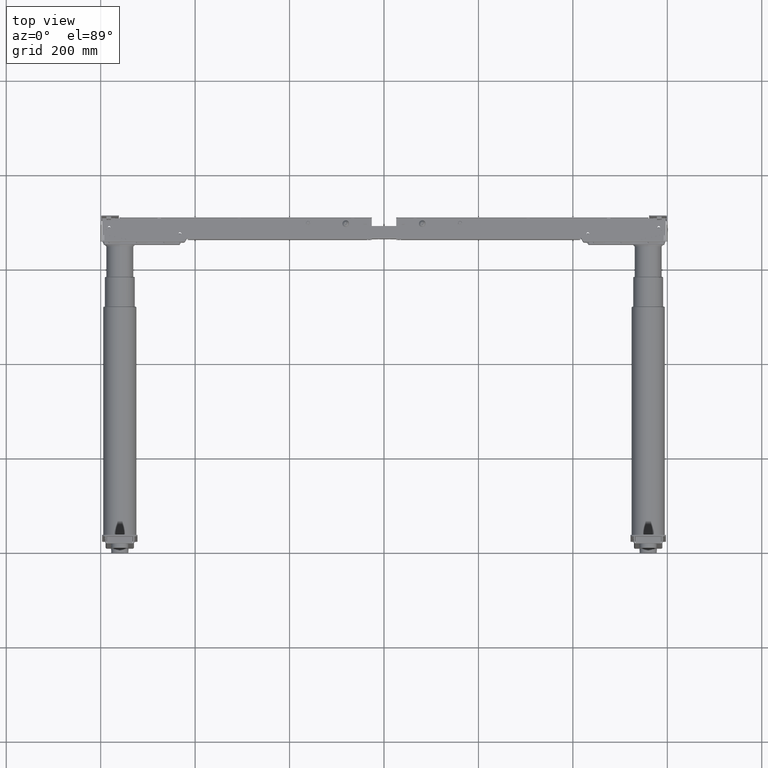
[diagram: clean part render]
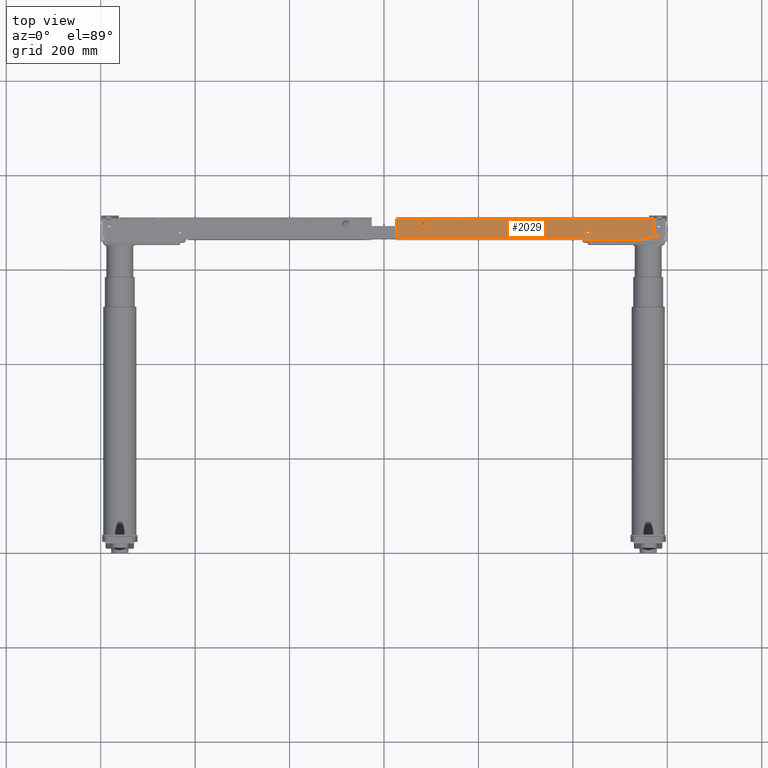
[diagram: same view with one face highlighted and labeled with its STEP entity id]
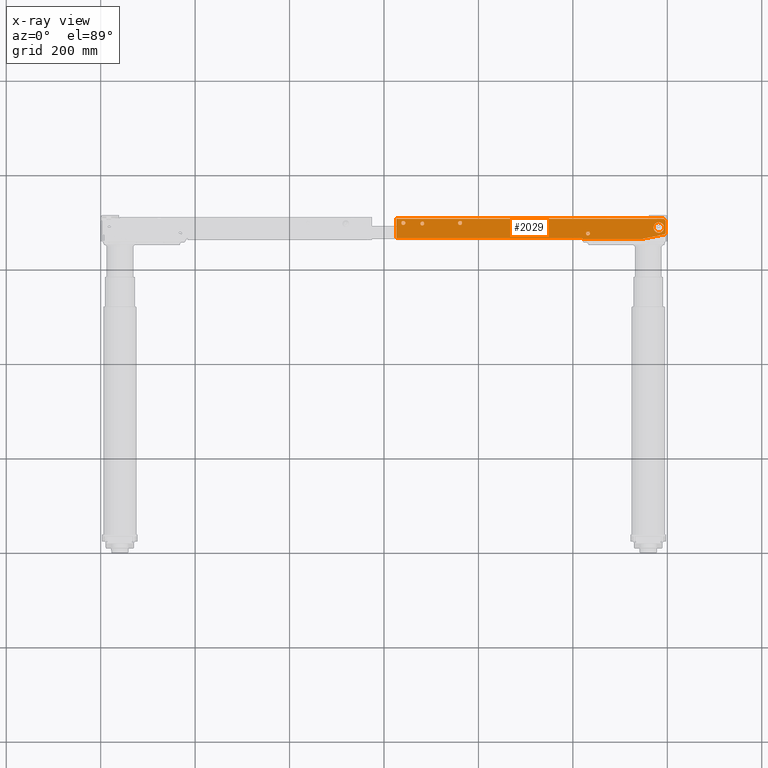
[diagram: x-ray of the same camera — body ghosted, the highlighted face saturated]
A machine part, top view. The second image highlights one B-rep face of the part: STEP entity #2029.
The next image is the same camera in x-ray: the body ghosted, the highlighted face saturated — about 0% of this face is hidden behind the body in this view.
In plain terms, the highlighted planar face has unit normal (0, 0, -1).
Its self-contained STEP definition (entity closure, byte-faithful):
#235 = LINE ( 'NONE', #83879, #34282 ) ;
#2029 = ADVANCED_FACE ( 'NONE', ( #104818, #95967, #53316, #69967, #94911, #44967 ), #94378, .F. ) ;
#2608 = ORIENTED_EDGE ( 'NONE', *, *, #37744, .F. ) ;
#3161 = VERTEX_POINT ( 'NONE', #18849 ) ;
#3286 = EDGE_CURVE ( 'NONE', #40039, #25336, #7541, .T. ) ;
#3337 = ORIENTED_EDGE ( 'NONE', *, *, #44582, .F. ) ;
#4040 = ORIENTED_EDGE ( 'NONE', *, *, #52958, .F. ) ;
#4456 = DIRECTION ( 'NONE',  ( -1.000000000000000000, 0.000000000000000000, 0.000000000000000000 ) ) ;
#5257 = DIRECTION ( 'NONE',  ( 0.9791338374667454270, 0.2032164568327207987, 0.000000000000000000 ) ) ;
#5892 = DIRECTION ( 'NONE',  ( 0.000000000000000000, -1.000000000000000000, 0.000000000000000000 ) ) ;
#6293 = DIRECTION ( 'NONE',  ( 0.000000000000000000, 0.000000000000000000, -1.000000000000000000 ) ) ;
#6464 = EDGE_LOOP ( 'NONE', ( #103527, #33527, #87466, #72435, #74947, #9717, #4040, #54064, #106850, #85042, #68302, #3337 ) ) ;
#6613 = AXIS2_PLACEMENT_3D ( 'NONE', #67322, #91716, #16889 ) ;
#6619 = ORIENTED_EDGE ( 'NONE', *, *, #32623, .F. ) ;
#7484 = DIRECTION ( 'NONE',  ( -0.000000000000000000, -0.000000000000000000, 1.000000000000000000 ) ) ;
#7541 = CIRCLE ( 'NONE', #69449, 11.00000000000001066 ) ;
#7873 = CARTESIAN_POINT ( 'NONE',  ( 559.9999999999998863, 701.4999999999989768, 46.99999999999997868 ) ) ;
#9352 = VERTEX_POINT ( 'NONE', #7873 ) ;
#9438 = EDGE_CURVE ( 'NONE', #82328, #79295, #83252, .T. ) ;
#9717 = ORIENTED_EDGE ( 'NONE', *, *, #79897, .T. ) ;
#9956 = DIRECTION ( 'NONE',  ( 0.000000000000000000, 0.000000000000000000, 1.000000000000000000 ) ) ;
#10350 = VERTEX_POINT ( 'NONE', #86521 ) ;
#10891 = AXIS2_PLACEMENT_3D ( 'NONE', #73721, #90348, #57619 ) ;
#11507 = VECTOR ( 'NONE', #92572, 1000.000000000000000 ) ;
#12087 = ORIENTED_EDGE ( 'NONE', *, *, #3286, .F. ) ;
#12832 = VECTOR ( 'NONE', #5892, 1000.000000000000000 ) ;
#12897 = DIRECTION ( 'NONE',  ( -1.000000000000000000, -0.000000000000000000, -0.000000000000000000 ) ) ;
#13103 = LINE ( 'NONE', #65186, #12832 ) ;
#13236 = LINE ( 'NONE', #21516, #46833 ) ;
#13345 = VERTEX_POINT ( 'NONE', #85331 ) ;
#13874 = ORIENTED_EDGE ( 'NONE', *, *, #33287, .F. ) ;
#14090 = EDGE_CURVE ( 'NONE', #18579, #63473, #85887, .T. ) ;
#14257 = CARTESIAN_POINT ( 'NONE',  ( 80.99999999999974420, 691.3999999999990678, 46.99999999999997868 ) ) ;
#14552 = CIRCLE ( 'NONE', #55213, 11.00000000000001066 ) ;
#14621 = CARTESIAN_POINT ( 'NONE',  ( 431.9575060191278340, 670.4999999999989768, 46.99999999999997868 ) ) ;
#14670 = CARTESIAN_POINT ( 'NONE',  ( 591.4999999999996589, 673.0688183406497274, 46.99999999999997868 ) ) ;
#15620 = EDGE_LOOP ( 'NONE', ( #6619, #2608 ) ) ;
#16889 = DIRECTION ( 'NONE',  ( -1.000000000000000000, 0.000000000000000000, 0.000000000000000000 ) ) ;
#18579 = VERTEX_POINT ( 'NONE', #107311 ) ;
#18849 = CARTESIAN_POINT ( 'NONE',  ( 592.5160822841633035, 668.1731491533161034, 46.99999999999997868 ) ) ;
#19266 = CIRCLE ( 'NONE', #45804, 4.099999999999992539 ) ;
#19388 = CARTESIAN_POINT ( 'NONE',  ( 40.99999999999975842, 692.5999999999989996, 46.99999999999997868 ) ) ;
#19540 = CIRCLE ( 'NONE', #74388, 5.000000000000004441 ) ;
#20969 = CARTESIAN_POINT ( 'NONE',  ( 418.9999999999997726, 660.9999999999989768, 46.99999999999997868 ) ) ;
#21464 = VERTEX_POINT ( 'NONE', #33273 ) ;
#21516 = CARTESIAN_POINT ( 'NONE',  ( 537.9999999999997726, 660.9999999999989768, 46.99999999999997868 ) ) ;
#22578 = DIRECTION ( 'NONE',  ( 1.000000000000000000, 0.000000000000000000, 0.000000000000000000 ) ) ;
#23047 = AXIS2_PLACEMENT_3D ( 'NONE', #78168, #80339, #36562 ) ;
#23128 = VERTEX_POINT ( 'NONE', #36417 ) ;
#24343 = VECTOR ( 'NONE', #5257, 999.9999999999998863 ) ;
#24765 = VERTEX_POINT ( 'NONE', #69351 ) ;
#25129 = VERTEX_POINT ( 'NONE', #99957 ) ;
#25336 = VERTEX_POINT ( 'NONE', #89853 ) ;
#26313 = CARTESIAN_POINT ( 'NONE',  ( 570.9999999999998863, 682.9999999999990905, 46.99999999999997868 ) ) ;
#26769 = DIRECTION ( 'NONE',  ( -1.000000000000000000, -0.000000000000000000, -0.000000000000000000 ) ) ;
#27506 = VERTEX_POINT ( 'NONE', #20969 ) ;
#30110 = DIRECTION ( 'NONE',  ( 0.000000000000000000, 0.000000000000000000, 1.000000000000000000 ) ) ;
#31164 = CIRCLE ( 'NONE', #61300, 4.299999999999998046 ) ;
#31264 = DIRECTION ( 'NONE',  ( -1.000000000000000000, 0.000000000000000000, 0.000000000000000000 ) ) ;
#31617 = CIRCLE ( 'NONE', #67015, 4.299999999999998046 ) ;
#32484 = EDGE_CURVE ( 'NONE', #25129, #10350, #40622, .T. ) ;
#32623 = EDGE_CURVE ( 'NONE', #23128, #105850, #31617, .T. ) ;
#33273 = CARTESIAN_POINT ( 'NONE',  ( 165.2999999999997556, 692.5999999999989996, 46.99999999999997868 ) ) ;
#33287 = EDGE_CURVE ( 'NONE', #59947, #49258, #19266, .T. ) ;
#33527 = ORIENTED_EDGE ( 'NONE', *, *, #66342, .T. ) ;
#34282 = VECTOR ( 'NONE', #26769, 1000.000000000000000 ) ;
#36417 = CARTESIAN_POINT ( 'NONE',  ( 45.29999999999975557, 692.5999999999989996, 46.99999999999997868 ) ) ;
#36562 = DIRECTION ( 'NONE',  ( -1.000000000000000000, 0.000000000000000000, 0.000000000000000000 ) ) ;
#37744 = EDGE_CURVE ( 'NONE', #105850, #23128, #44998, .T. ) ;
#38173 = CARTESIAN_POINT ( 'NONE',  ( 590.4999999999997726, 701.4999999999989768, 46.99999999999997868 ) ) ;
#39229 = EDGE_CURVE ( 'NONE', #49258, #59947, #100222, .T. ) ;
#40039 = VERTEX_POINT ( 'NONE', #26313 ) ;
#40127 = CIRCLE ( 'NONE', #105629, 4.250000000000031974 ) ;
#40306 = EDGE_CURVE ( 'NONE', #79295, #82328, #40127, .T. ) ;
#40622 = LINE ( 'NONE', #74468, #82817 ) ;
#41797 = ORIENTED_EDGE ( 'NONE', *, *, #39229, .F. ) ;
#41987 = ORIENTED_EDGE ( 'NONE', *, *, #73935, .F. ) ;
#43927 = DIRECTION ( 'NONE',  ( -1.000000000000000000, 0.000000000000000000, -0.000000000000000000 ) ) ;
#44582 = EDGE_CURVE ( 'NONE', #13345, #10350, #235, .T. ) ;
#44962 = AXIS2_PLACEMENT_3D ( 'NONE', #14670, #80594, #31264 ) ;
#44967 = FACE_OUTER_BOUND ( 'NONE', #6464, .T. ) ;
#44998 = CIRCLE ( 'NONE', #106971, 4.299999999999998046 ) ;
#45384 = DIRECTION ( 'NONE',  ( 0.000000000000000000, 0.000000000000000000, 1.000000000000000000 ) ) ;
#45804 = AXIS2_PLACEMENT_3D ( 'NONE', #14257, #57989, #91246 ) ;
#46533 = DIRECTION ( 'NONE',  ( -0.000000000000000000, -0.000000000000000000, 1.000000000000000000 ) ) ;
#46833 = VECTOR ( 'NONE', #55854, 1000.000000000000000 ) ;
#46914 = DIRECTION ( 'NONE',  ( -0.000000000000000000, -0.000000000000000000, 1.000000000000000000 ) ) ;
#47058 = AXIS2_PLACEMENT_3D ( 'NONE', #78179, #46533, #4456 ) ;
#47294 = DIRECTION ( 'NONE',  ( 1.000000000000000000, 0.000000000000000000, 0.000000000000000000 ) ) ;
#47498 = DIRECTION ( 'NONE',  ( 0.000000000000000000, 0.000000000000000000, 1.000000000000000000 ) ) ;
#47805 = EDGE_CURVE ( 'NONE', #27506, #13345, #13236, .T. ) ;
#49258 = VERTEX_POINT ( 'NONE', #105464 ) ;
#50412 = DIRECTION ( 'NONE',  ( 1.000000000000000000, 0.000000000000000000, 0.000000000000000000 ) ) ;
#52958 = EDGE_CURVE ( 'NONE', #68593, #85549, #13103, .T. ) ;
#53031 = CARTESIAN_POINT ( 'NONE',  ( 36.69999999999976126, 692.5999999999989996, 46.99999999999997868 ) ) ;
#53316 = FACE_BOUND ( 'NONE', #108197, .T. ) ;
#54064 = ORIENTED_EDGE ( 'NONE', *, *, #62026, .T. ) ;
#55213 = AXIS2_PLACEMENT_3D ( 'NONE', #82853, #7484, #108298 ) ;
#55854 = DIRECTION ( 'NONE',  ( -1.000000000000000000, -0.000000000000000000, -0.000000000000000000 ) ) ;
#57619 = DIRECTION ( 'NONE',  ( 1.000000000000000000, 0.000000000000000000, 0.000000000000000000 ) ) ;
#57989 = DIRECTION ( 'NONE',  ( 0.000000000000000000, 0.000000000000000000, 1.000000000000000000 ) ) ;
#58307 = CARTESIAN_POINT ( 'NONE',  ( 427.7075060191278340, 670.4999999999989768, 46.99999999999997868 ) ) ;
#59947 = VERTEX_POINT ( 'NONE', #81019 ) ;
#60021 = ORIENTED_EDGE ( 'NONE', *, *, #9438, .T. ) ;
#60882 = CARTESIAN_POINT ( 'NONE',  ( 160.9999999999997442, 692.5999999999989996, 46.99999999999997868 ) ) ;
#61300 = AXIS2_PLACEMENT_3D ( 'NONE', #60882, #9956, #50412 ) ;
#61629 = DIRECTION ( 'NONE',  ( -1.000000000000000000, -0.000000000000000000, -0.000000000000000000 ) ) ;
#62026 = EDGE_CURVE ( 'NONE', #68593, #80701, #89726, .T. ) ;
#63473 = VERTEX_POINT ( 'NONE', #68019 ) ;
#64675 = CARTESIAN_POINT ( 'NONE',  ( 40.99999999999975842, 692.5999999999989996, 46.99999999999997868 ) ) ;
#65186 = CARTESIAN_POINT ( 'NONE',  ( 596.4999999999997726, 701.4999999999989768, 46.99999999999997868 ) ) ;
#66342 = EDGE_CURVE ( 'NONE', #27506, #63473, #109265, .T. ) ;
#66774 = EDGE_CURVE ( 'NONE', #21464, #24765, #31164, .T. ) ;
#67015 = AXIS2_PLACEMENT_3D ( 'NONE', #19388, #45384, #67801 ) ;
#67322 = CARTESIAN_POINT ( 'NONE',  ( 590.4999999999997726, 695.4999999999989768, 46.99999999999997868 ) ) ;
#67801 = DIRECTION ( 'NONE',  ( 1.000000000000000000, 0.000000000000000000, 0.000000000000000000 ) ) ;
#68019 = CARTESIAN_POINT ( 'NONE',  ( 421.9999999999997726, 657.9999999999989768, 46.99999999999997868 ) ) ;
#68063 = CIRCLE ( 'NONE', #44962, 5.000000000000004441 ) ;
#68302 = ORIENTED_EDGE ( 'NONE', *, *, #32484, .T. ) ;
#68593 = VERTEX_POINT ( 'NONE', #79157 ) ;
#69351 = CARTESIAN_POINT ( 'NONE',  ( 156.6999999999997613, 692.5999999999989996, 46.99999999999997868 ) ) ;
#69449 = AXIS2_PLACEMENT_3D ( 'NONE', #104131, #93132, #84825 ) ;
#69967 = FACE_BOUND ( 'NONE', #76227, .T. ) ;
#70464 = ORIENTED_EDGE ( 'NONE', *, *, #40306, .T. ) ;
#72247 = CARTESIAN_POINT ( 'NONE',  ( 80.99999999999974420, 691.3999999999990678, 46.99999999999997868 ) ) ;
#72435 = ORIENTED_EDGE ( 'NONE', *, *, #97883, .T. ) ;
#72904 = VECTOR ( 'NONE', #61629, 1000.000000000000000 ) ;
#73721 = CARTESIAN_POINT ( 'NONE',  ( 160.9999999999997442, 692.5999999999989996, 46.99999999999997868 ) ) ;
#73935 = EDGE_CURVE ( 'NONE', #25336, #40039, #14552, .T. ) ;
#73936 = VECTOR ( 'NONE', #12897, 1000.000000000000000 ) ;
#74388 = AXIS2_PLACEMENT_3D ( 'NONE', #98480, #46914, #80738 ) ;
#74468 = CARTESIAN_POINT ( 'NONE',  ( 25.99999999999974420, 657.9999999999989768, 46.99999999999997868 ) ) ;
#74546 = EDGE_CURVE ( 'NONE', #24765, #21464, #81699, .T. ) ;
#74591 = CARTESIAN_POINT ( 'NONE',  ( 596.4999999999997726, 673.0688183406497274, 46.99999999999997868 ) ) ;
#74947 = ORIENTED_EDGE ( 'NONE', *, *, #109436, .T. ) ;
#75539 = EDGE_CURVE ( 'NONE', #80701, #9352, #78254, .T. ) ;
#76227 = EDGE_LOOP ( 'NONE', ( #70464, #60021 ) ) ;
#78168 = CARTESIAN_POINT ( 'NONE',  ( 431.9575060191278340, 670.4999999999989768, 46.99999999999997868 ) ) ;
#78179 = CARTESIAN_POINT ( 'NONE',  ( 421.9999999999997726, 660.9999999999989768, 46.99999999999997868 ) ) ;
#78254 = LINE ( 'NONE', #86039, #72904 ) ;
#78810 = DIRECTION ( 'NONE',  ( 0.000000000000000000, 0.000000000000000000, -1.000000000000000000 ) ) ;
#79042 = CARTESIAN_POINT ( 'NONE',  ( 436.2075060191278908, 670.4999999999989768, 46.99999999999997868 ) ) ;
#79157 = CARTESIAN_POINT ( 'NONE',  ( 596.4999999999997726, 695.4999999999989768, 46.99999999999997868 ) ) ;
#79295 = VERTEX_POINT ( 'NONE', #58307 ) ;
#79391 = LINE ( 'NONE', #97664, #73936 ) ;
#79897 = EDGE_CURVE ( 'NONE', #3161, #85549, #68063, .T. ) ;
#80339 = DIRECTION ( 'NONE',  ( 0.000000000000000000, 0.000000000000000000, -1.000000000000000000 ) ) ;
#80594 = DIRECTION ( 'NONE',  ( -0.000000000000000000, -0.000000000000000000, 1.000000000000000000 ) ) ;
#80701 = VERTEX_POINT ( 'NONE', #38173 ) ;
#80738 = DIRECTION ( 'NONE',  ( -1.000000000000000000, 0.000000000000000000, 0.000000000000000000 ) ) ;
#81019 = CARTESIAN_POINT ( 'NONE',  ( 85.09999999999973852, 691.3999999999990678, 46.99999999999997868 ) ) ;
#81162 = CARTESIAN_POINT ( 'NONE',  ( 538.2271331058017267, 656.9056313993164622, 46.99999999999997868 ) ) ;
#81699 = CIRCLE ( 'NONE', #10891, 4.299999999999998046 ) ;
#82236 = LINE ( 'NONE', #81162, #24343 ) ;
#82328 = VERTEX_POINT ( 'NONE', #79042 ) ;
#82817 = VECTOR ( 'NONE', #90544, 1000.000000000000000 ) ;
#82853 = CARTESIAN_POINT ( 'NONE',  ( 581.9999999999998863, 682.9999999999990905, 46.99999999999997868 ) ) ;
#83252 = CIRCLE ( 'NONE', #23047, 4.250000000000031974 ) ;
#83879 = CARTESIAN_POINT ( 'NONE',  ( 537.9999999999997726, 660.9999999999989768, 46.99999999999997868 ) ) ;
#84812 = ORIENTED_EDGE ( 'NONE', *, *, #74546, .F. ) ;
#84821 = CARTESIAN_POINT ( 'NONE',  ( 418.9999999999997726, 657.9999999999989768, 46.99999999999997868 ) ) ;
#84825 = DIRECTION ( 'NONE',  ( -1.000000000000000000, 0.000000000000000000, 0.000000000000000000 ) ) ;
#85042 = ORIENTED_EDGE ( 'NONE', *, *, #105155, .T. ) ;
#85331 = CARTESIAN_POINT ( 'NONE',  ( 415.9999999999997726, 660.9999999999989768, 46.99999999999997868 ) ) ;
#85549 = VERTEX_POINT ( 'NONE', #74591 ) ;
#85887 = LINE ( 'NONE', #84821, #11507 ) ;
#86039 = CARTESIAN_POINT ( 'NONE',  ( 537.9999999999997726, 701.4999999999989768, 46.99999999999997868 ) ) ;
#86521 = CARTESIAN_POINT ( 'NONE',  ( 25.99999999999974420, 660.9999999999989768, 46.99999999999997868 ) ) ;
#86601 = CARTESIAN_POINT ( 'NONE',  ( 537.9999999999997726, 657.9999999999989768, 46.99999999999997868 ) ) ;
#87466 = ORIENTED_EDGE ( 'NONE', *, *, #14090, .F. ) ;
#88269 = EDGE_LOOP ( 'NONE', ( #108372, #84812 ) ) ;
#89726 = CIRCLE ( 'NONE', #6613, 6.000000000000005329 ) ;
#89853 = CARTESIAN_POINT ( 'NONE',  ( 592.9999999999998863, 682.9999999999990905, 46.99999999999997868 ) ) ;
#90348 = DIRECTION ( 'NONE',  ( 0.000000000000000000, 0.000000000000000000, 1.000000000000000000 ) ) ;
#90544 = DIRECTION ( 'NONE',  ( -0.000000000000000000, -1.000000000000000000, -0.000000000000000000 ) ) ;
#91246 = DIRECTION ( 'NONE',  ( 1.000000000000000000, 0.000000000000000000, 0.000000000000000000 ) ) ;
#91716 = DIRECTION ( 'NONE',  ( -0.000000000000000000, -0.000000000000000000, 1.000000000000000000 ) ) ;
#92572 = DIRECTION ( 'NONE',  ( -1.000000000000000000, -0.000000000000000000, -0.000000000000000000 ) ) ;
#92679 = DIRECTION ( 'NONE',  ( -1.000000000000000000, 0.000000000000000000, 0.000000000000000000 ) ) ;
#93132 = DIRECTION ( 'NONE',  ( -0.000000000000000000, -0.000000000000000000, 1.000000000000000000 ) ) ;
#94066 = EDGE_LOOP ( 'NONE', ( #12087, #41987 ) ) ;
#94303 = AXIS2_PLACEMENT_3D ( 'NONE', #86601, #78810, #43927 ) ;
#94378 = PLANE ( 'NONE',  #94303 ) ;
#94911 = FACE_BOUND ( 'NONE', #94066, .T. ) ;
#95967 = FACE_BOUND ( 'NONE', #88269, .T. ) ;
#96775 = CARTESIAN_POINT ( 'NONE',  ( 544.0026848246644704, 658.1043308126652391, 46.99999999999997868 ) ) ;
#97664 = CARTESIAN_POINT ( 'NONE',  ( 537.9999999999997726, 701.4999999999989768, 46.99999999999997868 ) ) ;
#97883 = EDGE_CURVE ( 'NONE', #18579, #99909, #19540, .T. ) ;
#98480 = CARTESIAN_POINT ( 'NONE',  ( 542.9866025405009395, 662.9999999999990905, 46.99999999999997868 ) ) ;
#99909 = VERTEX_POINT ( 'NONE', #96775 ) ;
#99957 = CARTESIAN_POINT ( 'NONE',  ( 25.99999999999974420, 701.4999999999989768, 46.99999999999997868 ) ) ;
#100222 = CIRCLE ( 'NONE', #109043, 4.099999999999992539 ) ;
#103527 = ORIENTED_EDGE ( 'NONE', *, *, #47805, .F. ) ;
#104131 = CARTESIAN_POINT ( 'NONE',  ( 581.9999999999998863, 682.9999999999990905, 46.99999999999997868 ) ) ;
#104818 = FACE_BOUND ( 'NONE', #15620, .T. ) ;
#105155 = EDGE_CURVE ( 'NONE', #9352, #25129, #79391, .T. ) ;
#105464 = CARTESIAN_POINT ( 'NONE',  ( 76.89999999999974989, 691.3999999999990678, 46.99999999999997868 ) ) ;
#105629 = AXIS2_PLACEMENT_3D ( 'NONE', #14621, #6293, #92679 ) ;
#105850 = VERTEX_POINT ( 'NONE', #53031 ) ;
#106850 = ORIENTED_EDGE ( 'NONE', *, *, #75539, .T. ) ;
#106971 = AXIS2_PLACEMENT_3D ( 'NONE', #64675, #47498, #22578 ) ;
#107311 = CARTESIAN_POINT ( 'NONE',  ( 542.9866025405009395, 657.9999999999989768, 46.99999999999997868 ) ) ;
#108197 = EDGE_LOOP ( 'NONE', ( #13874, #41797 ) ) ;
#108298 = DIRECTION ( 'NONE',  ( -1.000000000000000000, 0.000000000000000000, 0.000000000000000000 ) ) ;
#108372 = ORIENTED_EDGE ( 'NONE', *, *, #66774, .F. ) ;
#109043 = AXIS2_PLACEMENT_3D ( 'NONE', #72247, #30110, #47294 ) ;
#109265 = CIRCLE ( 'NONE', #47058, 3.000000000000002665 ) ;
#109436 = EDGE_CURVE ( 'NONE', #99909, #3161, #82236, .T. ) ;